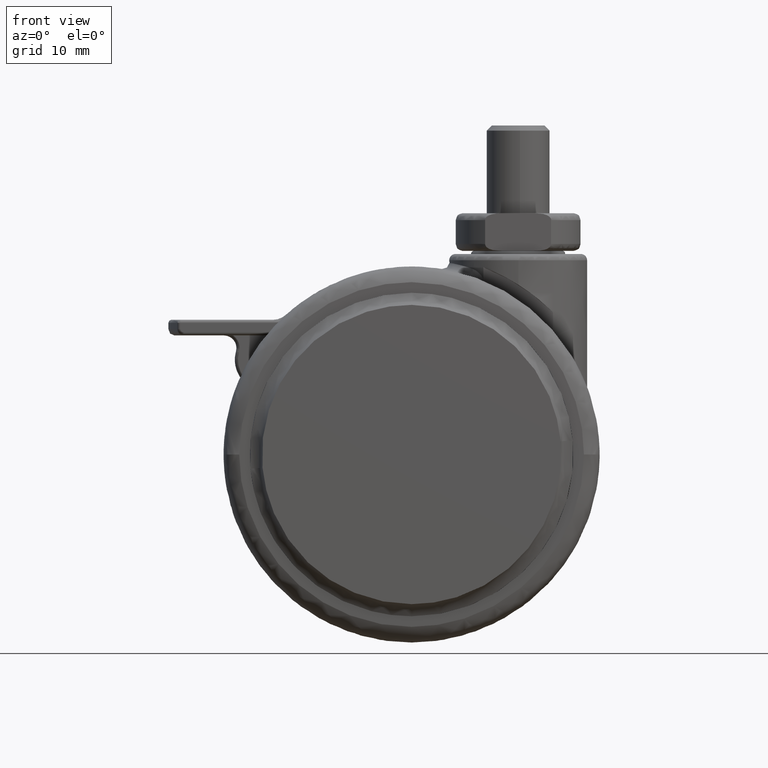
[diagram: clean part render]
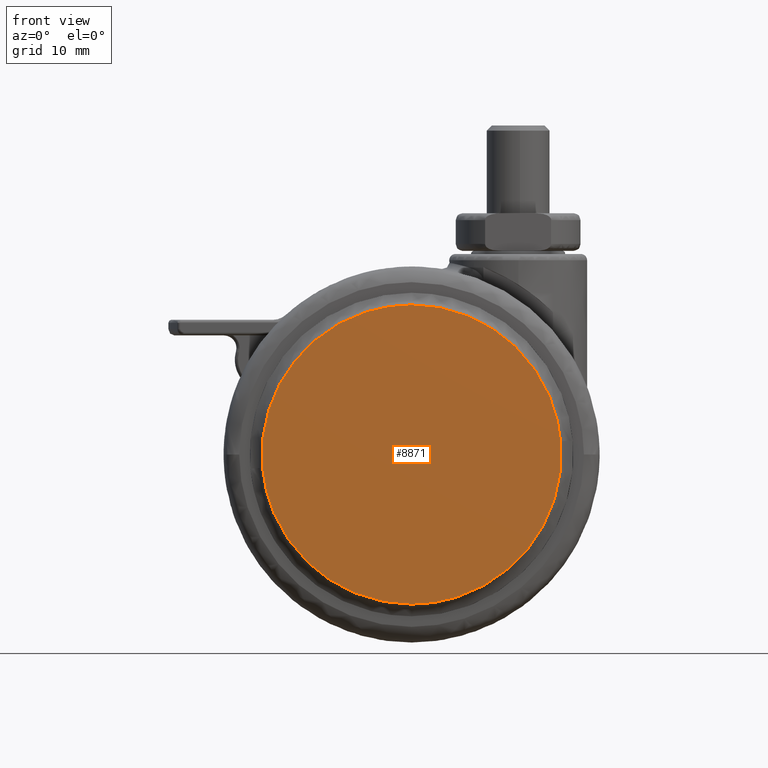
[diagram: same view with one face highlighted and labeled with its STEP entity id]
A machine part, front view. The second image highlights one B-rep face of the part: STEP entity #8871.
In plain terms, the highlighted face is a freeform B-spline surface patch.
Its self-contained STEP definition (entity closure, byte-faithful):
#8800=CARTESIAN_POINT('',(-26.253983298255239,-22.800000000000001,-26.260700038385689));
#8801=CARTESIAN_POINT('',(-26.253983298255239,-22.800000000000001,26.260701319169161));
#8802=CARTESIAN_POINT('',(26.253983725177669,-22.800000000000001,-26.260700038385689));
#8803=CARTESIAN_POINT('',(26.253983725177669,-22.800000000000001,26.260701319169161));
#8804=B_SPLINE_SURFACE_WITH_KNOTS('',1,1,((#8800,#8802),(#8801,#8803)),.UNSPECIFIED.,.F.,.F.,.U.,(2,2),(2,2),(0.0,52.521401357554851),(0.0,52.507967023432911),.UNSPECIFIED.);
#8805=CARTESIAN_POINT('',(-23.783222111210389,-22.799999999489390,-2.097494252924088));
#8806=VERTEX_POINT('',#8805);
#8807=CARTESIAN_POINT('',(0.0,-22.800000000000001,23.875534258511259));
#8808=VERTEX_POINT('',#8807);
#8809=CARTESIAN_POINT('',(-23.783222111210392,-22.799999999489398,-2.097494252924089));
#8810=CARTESIAN_POINT('',(-23.875534258569946,-22.799999999499676,-1.050778486631238));
#8811=CARTESIAN_POINT('',(-23.875534258568639,-22.799999999510920,-5.057056E-012));
#8812=CARTESIAN_POINT('',(-23.875534258538682,-22.799999999766211,23.875534258508829));
#8813=CARTESIAN_POINT('',(0.0,-22.800000000000001,23.875534258511259));
#8821=(BOUNDED_CURVE()B_SPLINE_CURVE(2,(#8809,#8810,#8811,#8812,#8813),.UNSPECIFIED.,.F.,.U.)B_SPLINE_CURVE_WITH_KNOTS((3,2,3),(0.734718454855897,0.750000000000000,1.0),.UNSPECIFIED.)CURVE()GEOMETRIC_REPRESENTATION_ITEM()RATIONAL_B_SPLINE_CURVE((0.966381850709618,0.982096556217202,1.0,0.707106781186547,1.0))REPRESENTATION_ITEM(''));
#8822=EDGE_CURVE('',#8806,#8808,#8821,.T.);
#8823=ORIENTED_EDGE('',*,*,#8822,.F.);
#8824=CARTESIAN_POINT('',(0.0,-22.800000000000001,-23.875534258511252));
#8825=VERTEX_POINT('',#8824);
#8826=CARTESIAN_POINT('',(0.0,-22.800000000000001,-23.875534258511252));
#8827=CARTESIAN_POINT('',(-21.862569243453571,-22.799999999744692,-23.875534258513881));
#8828=CARTESIAN_POINT('',(-23.783222111210392,-22.799999999489398,-2.097494252924089));
#8836=(BOUNDED_CURVE()B_SPLINE_CURVE(2,(#8826,#8827,#8828),.UNSPECIFIED.,.F.,.U.)B_SPLINE_CURVE_WITH_KNOTS((3,3),(0.500000000000000,0.734718454855897),.UNSPECIFIED.)CURVE()GEOMETRIC_REPRESENTATION_ITEM()RATIONAL_B_SPLINE_CURVE((1.0,0.725010224969346,0.966381850709618))REPRESENTATION_ITEM(''));
#8837=EDGE_CURVE('',#8825,#8806,#8836,.T.);
#8838=ORIENTED_EDGE('',*,*,#8837,.F.);
#8839=CARTESIAN_POINT('',(23.783222111210389,-22.799999999489390,2.097494252924087));
#8840=VERTEX_POINT('',#8839);
#8841=CARTESIAN_POINT('',(23.783222111210392,-22.799999999489398,2.097494252924088));
#8842=CARTESIAN_POINT('',(23.875534258569946,-22.799999999499676,1.050778486631239));
#8843=CARTESIAN_POINT('',(23.875534258568631,-22.799999999510920,5.060183E-012));
#8844=CARTESIAN_POINT('',(23.875534258538682,-22.799999999766211,-23.875534258508829));
#8845=CARTESIAN_POINT('',(0.0,-22.800000000000001,-23.875534258511252));
#8853=(BOUNDED_CURVE()B_SPLINE_CURVE(2,(#8841,#8842,#8843,#8844,#8845),.UNSPECIFIED.,.F.,.U.)B_SPLINE_CURVE_WITH_KNOTS((3,2,3),(0.234718454855897,0.250000000000000,0.500000000000000),.UNSPECIFIED.)CURVE()GEOMETRIC_REPRESENTATION_ITEM()RATIONAL_B_SPLINE_CURVE((0.966381850709618,0.982096556217202,1.0,0.707106781186547,1.0))REPRESENTATION_ITEM(''));
#8854=EDGE_CURVE('',#8840,#8825,#8853,.T.);
#8855=ORIENTED_EDGE('',*,*,#8854,.F.);
#8856=CARTESIAN_POINT('',(0.0,-22.800000000000001,23.875534258511259));
#8857=CARTESIAN_POINT('',(21.862569243453574,-22.799999999744696,23.875534258513884));
#8858=CARTESIAN_POINT('',(23.783222111210392,-22.799999999489398,2.097494252924088));
#8866=(BOUNDED_CURVE()B_SPLINE_CURVE(2,(#8856,#8857,#8858),.UNSPECIFIED.,.F.,.U.)B_SPLINE_CURVE_WITH_KNOTS((3,3),(0.0,0.234718454855897),.UNSPECIFIED.)CURVE()GEOMETRIC_REPRESENTATION_ITEM()RATIONAL_B_SPLINE_CURVE((1.0,0.725010224969346,0.966381850709618))REPRESENTATION_ITEM(''));
#8867=EDGE_CURVE('',#8808,#8840,#8866,.T.);
#8868=ORIENTED_EDGE('',*,*,#8867,.F.);
#8869=EDGE_LOOP('',(#8823,#8838,#8855,#8868));
#8870=FACE_OUTER_BOUND('',#8869,.T.);
#8871=ADVANCED_FACE('',(#8870),#8804,.F.);